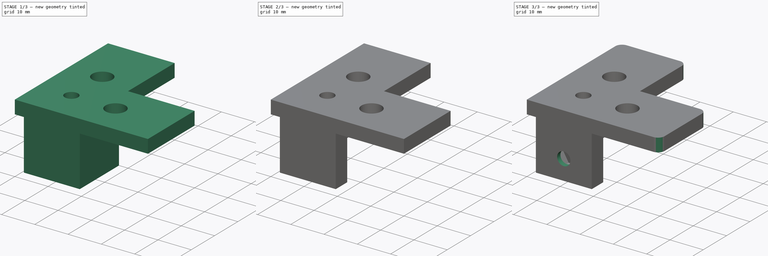
[diagram: build sequence overview — one tinted view per stage of 3, left to right]
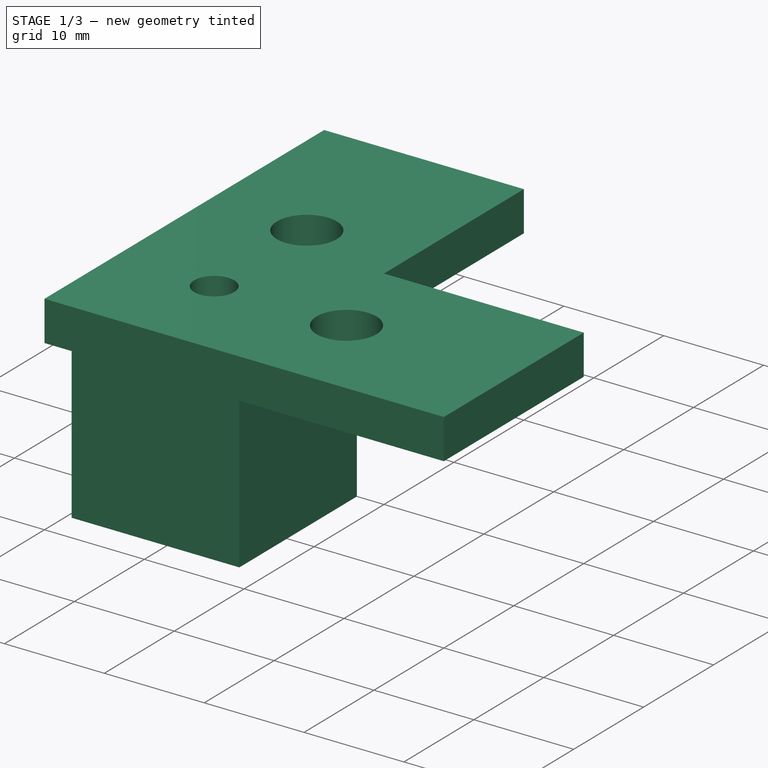
[diagram: stage 1 of 3 — iso view after this stage's code; geometry added in this stage tinted green]
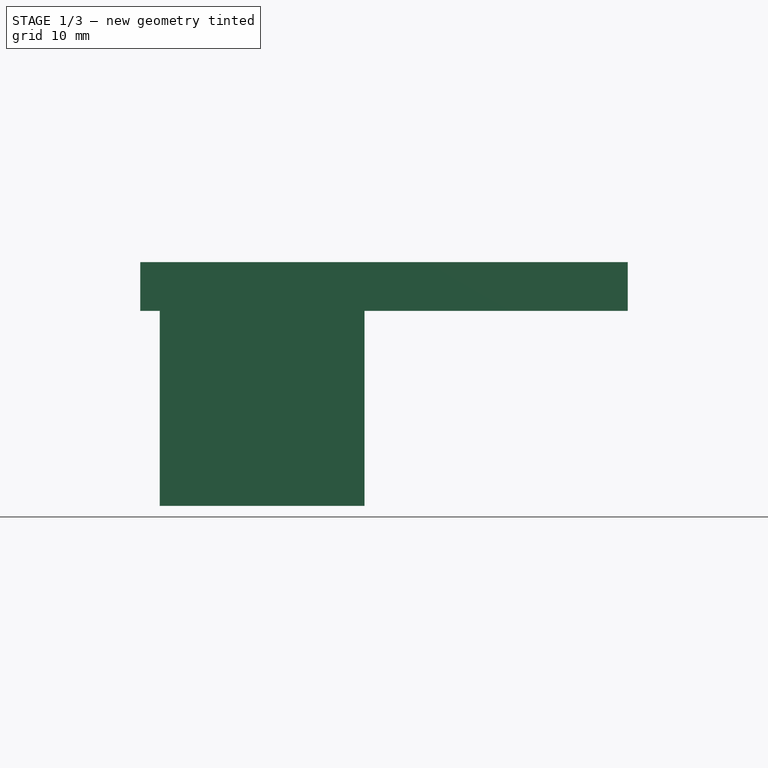
[diagram: stage 1 of 3 — front view after this stage's code; geometry added in this stage tinted green]
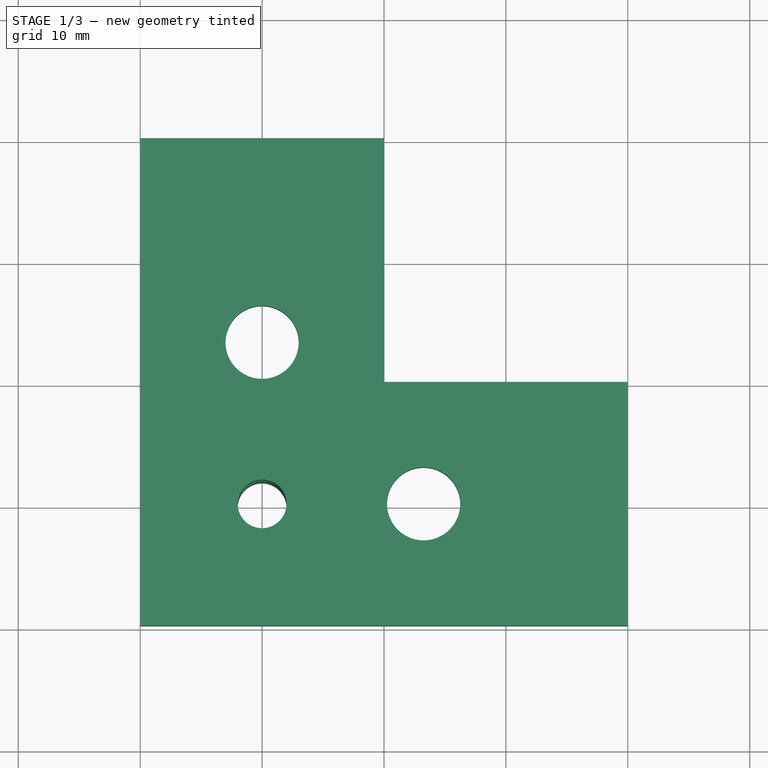
[diagram: stage 1 of 3 — top view after this stage's code; geometry added in this stage tinted green]
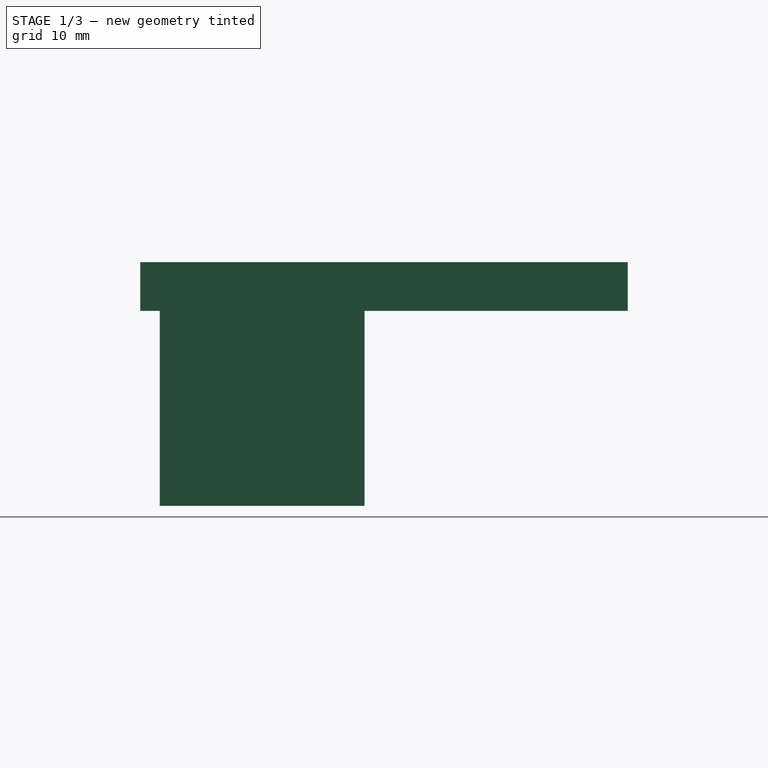
[diagram: stage 1 of 3 — right view after this stage's code; geometry added in this stage tinted green]
FCSTD DOCUMENT  (FreeCAD 0.19R)
Label: coupler
License: All rights reserved
LicenseURL: http://en.wikipedia.org/wiki/All_rights_reserved
objects: Sketcher::SketchObject×6, PartDesign::Pocket×4, PartDesign::Pad×2, PartDesign::Fillet×1, PartDesign::Body×1
note: 20 computed .brp shape members not serialized (recipe doc carries the construction recipe); baked Part::Feature solids carry a one-line shape summary decoded from their .brp

FEATURE [Sketcher::SketchObject] Sketch
  MapMode = 5
  Support = -> [XY_Plane]
  expr: Constraints[11] = .Constraints.width_a / 2
  expr: Constraints[10] = .Constraints.width_a / 2
  sketch-geometry (5):
    g0: LineSegment StartX=-8.4 StartY=-8.4 StartZ=0 EndX=8.4 EndY=-8.4 EndZ=0
    g1: LineSegment StartX=8.4 StartY=-8.4 StartZ=0 EndX=8.4 EndY=8.4 EndZ=0
    g2: LineSegment StartX=8.4 StartY=8.4 StartZ=0 EndX=-8.4 EndY=8.4 EndZ=0
    g3: LineSegment StartX=-8.4 StartY=8.4 StartZ=0 EndX=-8.4 EndY=-8.4 EndZ=0
    g4: Circle CenterX=0 CenterY=0 CenterZ=0 NormalX=0 NormalY=0 NormalZ=1 AngleXU=0 Radius=2
  constraints (14):
    c: Coincident(g0,g1)
    c: Coincident(g1,g2)
    c: Coincident(g2,g3)
    c: Coincident(g3,g0)
    c: Horizontal(g0)
    c: Horizontal(g2)
    c: Vertical(g1)
    c: Vertical(g3)
    c: Equal(g3,g0)
    c: DistanceX(g0,g0) = 16.8  'width_a'
    c: DistanceX(g0,g-1) = 8.4
    c: DistanceY(g0,g-1) = 8.4
    c: Coincident(g4,g-1)
    c: Diameter(g4) = 4
FEATURE [PartDesign::Pad] Pad
  Length = 16
  Length2 = 100
  Profile = -> Sketch
  Type = 0
FEATURE [Sketcher::SketchObject] Sketch002
  MapMode = 5
  Placement = pos=(0,0,16) rot=(0,0,1;0rad)
  sketch-geometry (9):
    g0: LineSegment StartX=-10 StartY=-10 StartZ=0 EndX=30 EndY=-10 EndZ=0
    g1: LineSegment StartX=30 StartY=-10 StartZ=0 EndX=30 EndY=10 EndZ=0
    g2: LineSegment StartX=30 StartY=10 StartZ=0 EndX=10 EndY=10 EndZ=0
    g3: LineSegment StartX=10 StartY=10 StartZ=0 EndX=10 EndY=30 EndZ=0
    g4: LineSegment StartX=10 StartY=30 StartZ=0 EndX=-10 EndY=30 EndZ=0
    g5: LineSegment StartX=-10 StartY=30 StartZ=0 EndX=-10 EndY=-10 EndZ=0
    g6: Circle CenterX=0 CenterY=0 CenterZ=0 NormalX=0 NormalY=0 NormalZ=1 AngleXU=0 Radius=2
    g7: Circle CenterX=0 CenterY=13.25 CenterZ=0 NormalX=0 NormalY=0 NormalZ=1 AngleXU=0 Radius=3
    g8: Circle CenterX=13.25 CenterY=0 CenterZ=0 NormalX=0 NormalY=0 NormalZ=1 AngleXU=0 Radius=3
  constraints (26):
    c: Horizontal(g0)
    c: Coincident(g0,g1)
    c: Vertical(g1)
    c: Coincident(g1,g2)
    c: Horizontal(g2)
    c: Coincident(g2,g3)
    c: Vertical(g3)
    c: Coincident(g3,g4)
    c: Horizontal(g4)
    c: Coincident(g4,g5)
    c: Coincident(g5,g0)
    c: Vertical(g5)
    c: DistanceX(g0,g-1) = 10
    c: DistanceY(g0,g-1) = 10
    c: DistanceY(g1,g1) = 20
    c: DistanceX(g0,g0) = 40
    c: Equal(g0,g5)
    c: Equal(g1,g4)
    c: Coincident(g6,g-1)
    c: Diameter(g6) = 4
    c: PointOnObject(g7,g-2)
    c: DistanceY(g6,g7) = 13.25
    c: PointOnObject(g8,g-1)
    c: DistanceX(g6,g8) = 13.25
    c: Equal(g7,g8)
    c: Diameter(g7) = 6
FEATURE [PartDesign::Pad] Pad001
  BaseFeature = -> Pad
  Length = 4
  Length2 = 100
  Profile = -> Sketch002
  Type = 0
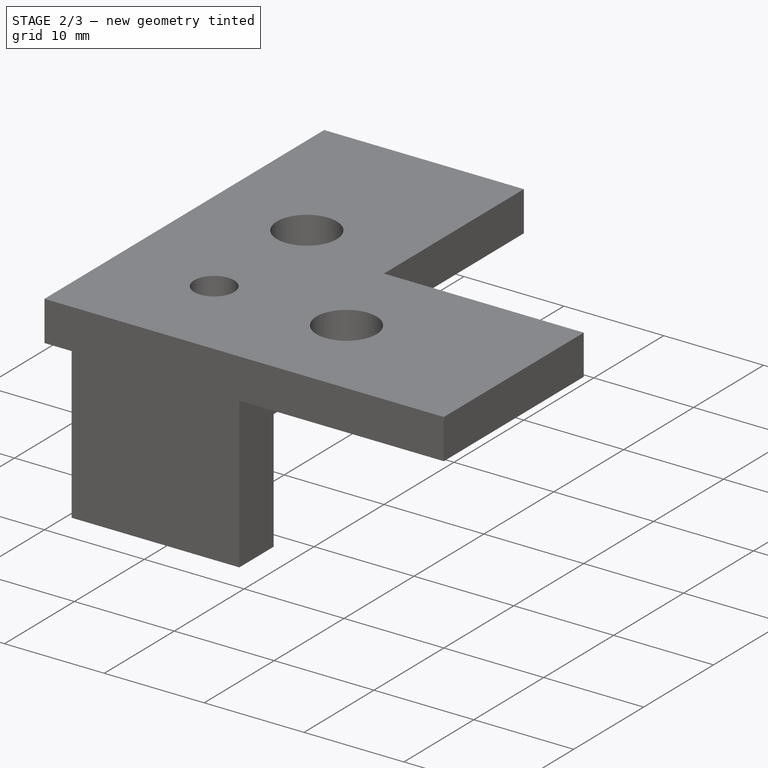
[diagram: stage 2 of 3 — iso view after this stage's code; geometry added in this stage tinted green]
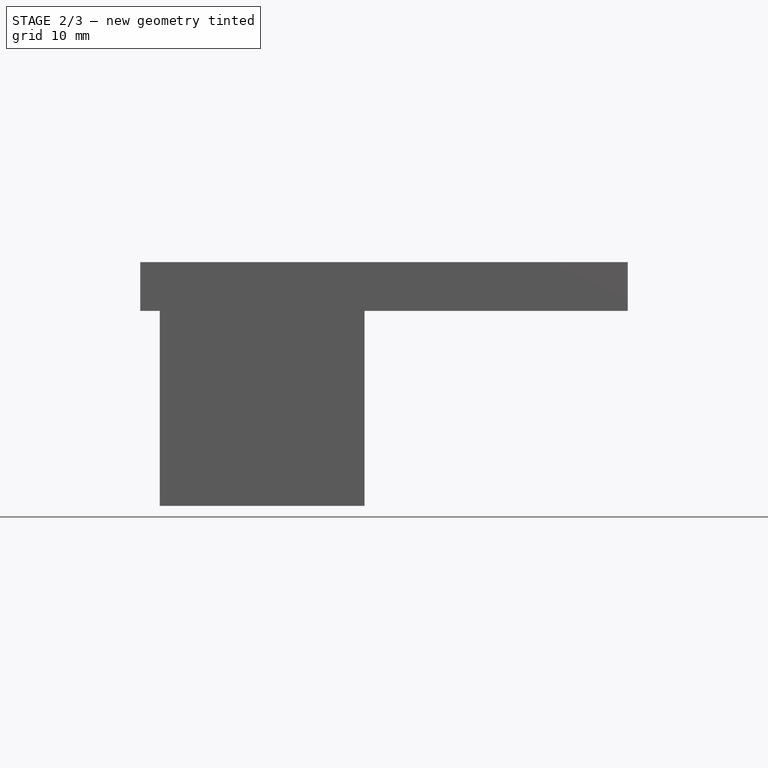
[diagram: stage 2 of 3 — front view after this stage's code; geometry added in this stage tinted green]
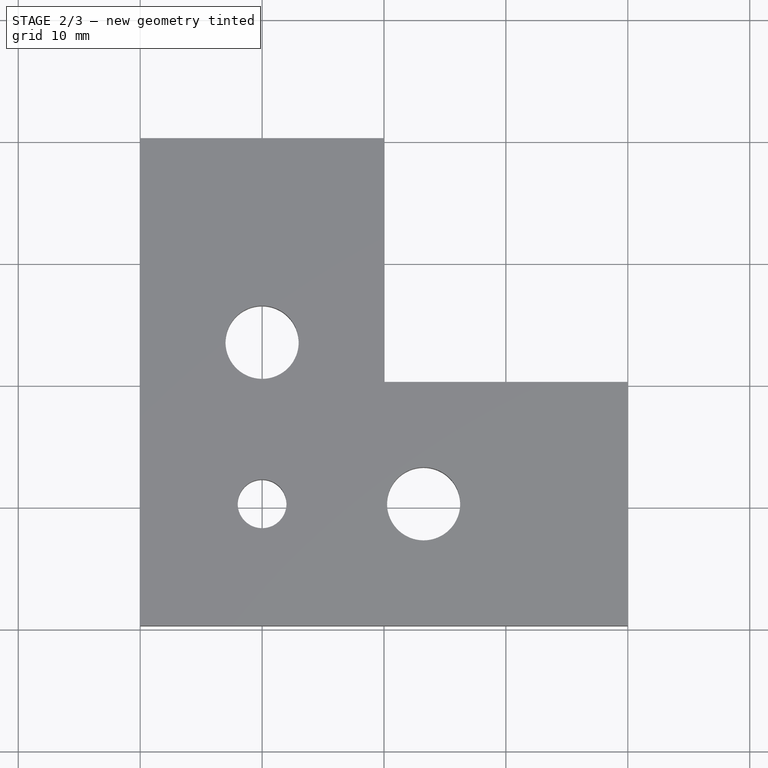
[diagram: stage 2 of 3 — top view after this stage's code; geometry added in this stage tinted green]
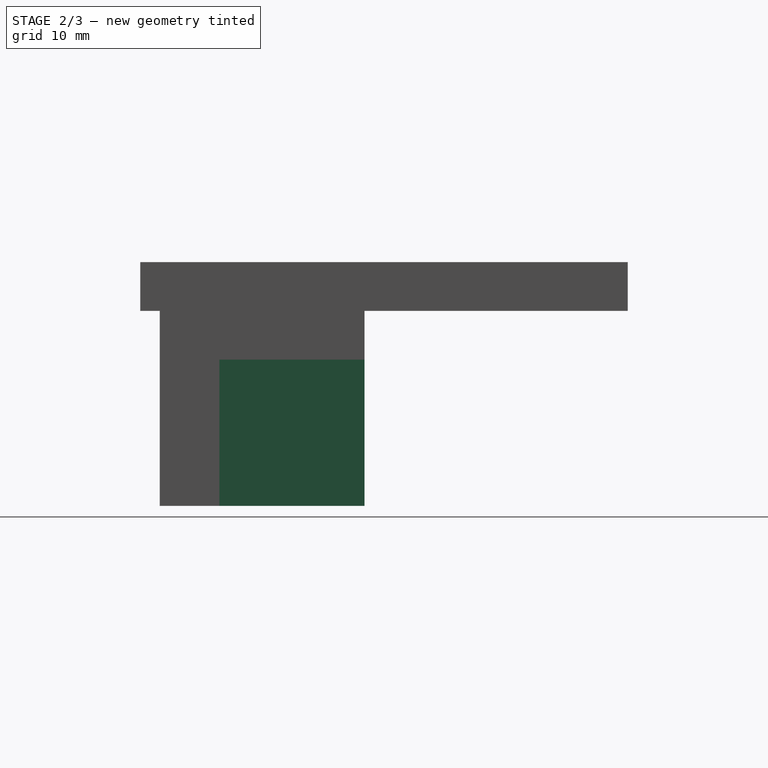
[diagram: stage 2 of 3 — right view after this stage's code; geometry added in this stage tinted green]
FEATURE [Sketcher::SketchObject] Sketch003
  MapMode = 5
  Support = -> [XY_Plane]
  expr: Constraints[3] = Sketch.Constraints.width_a / 2
  expr: Constraints[4] = Sketch.Constraints.width_a / 2 + 4mm
  expr: Constraints[9] = Sketch.Constraints.width_a / 2
  expr: Constraints[11] = Sketch.Constraints.width_a / 2 + 3.5mm
  sketch-geometry (4):
    g0: LineSegment StartX=8.4 StartY=8.4 StartZ=0 EndX=-4 EndY=8.4 EndZ=0
    g1: LineSegment StartX=8.4 StartY=-3.5 StartZ=0 EndX=8.4 EndY=8.4 EndZ=0
    g2: LineSegment StartX=-4 StartY=8.4 StartZ=0 EndX=-4 EndY=-3.5 EndZ=0
    g3: LineSegment StartX=-4 StartY=-3.5 StartZ=0 EndX=8.4 EndY=-3.5 EndZ=0
  constraints (12):
    c: Coincident(g1,g0)
    c: Horizontal(g0)
    c: Vertical(g1)
    c: DistanceY(g-1,g0) = 8.4
    c: DistanceX(g0,g0) = 12.4
    c: Coincident(g0,g2)
    c: Vertical(g2)
    c: Coincident(g3,g1)
    c: Horizontal(g3)
    c: DistanceX(g-1,g0) = 8.4
    c: Coincident(g2,g3)
    c: DistanceY(g1,g1) = 11.9
FEATURE [PartDesign::Pocket] Pocket001
  BaseFeature = -> Pad001
  Length = 12
  Length2 = 100
  Profile = -> Sketch003
  Reversed = true
  Type = 0
FEATURE [Sketcher::SketchObject] Sketch001
  MapMode = 5
  Placement = pos=(0,0,16) rot=(1,0,0;3.14159rad)
  Support = -> [Pocket001]
  sketch-geometry (1):
    g0: Circle CenterX=0 CenterY=0 CenterZ=0 NormalX=0 NormalY=0 NormalZ=1 AngleXU=0 Radius=3.5
  constraints (2):
    c: Coincident(g0,g-1)
    c: Diameter(g0) = 7
FEATURE [PartDesign::Pocket] Pocket
  BaseFeature = -> Pocket001
  Length = 0
  Length2 = 100
  Profile = -> Sketch001
  Reversed = true
  Type = 3
  UpToFace = -> Pocket001 [Face8]
FEATURE [Sketcher::SketchObject] Sketch004
  MapMode = 5
  Placement = pos=(0,-3.5,0) rot=(0,0.707107,0.707107;3.14159rad)
  Support = -> [Pocket]
  sketch-geometry (7):
    g0: LineSegment StartX=4 StartY=6 StartZ=0 EndX=2 EndY=9.4641 EndZ=0
    g1: LineSegment StartX=2 StartY=9.4641 StartZ=0 EndX=-2 EndY=9.4641 EndZ=0
    g2: LineSegment StartX=-2 StartY=9.4641 StartZ=0 EndX=-4 EndY=6 EndZ=0
    g3: LineSegment StartX=-4 StartY=6 StartZ=0 EndX=-2 EndY=2.5359 EndZ=0
    g4: LineSegment StartX=-2 StartY=2.5359 StartZ=0 EndX=2 EndY=2.5359 EndZ=0
    g5: LineSegment StartX=2 StartY=2.5359 StartZ=0 EndX=4 EndY=6 EndZ=0
    g6: Circle [constr] CenterX=0 CenterY=6 CenterZ=0 NormalX=0 NormalY=0 NormalZ=1 AngleXU=0 Radius=4
  constraints (17):
    c: Coincident(g0,g1)
    c: Coincident(g1,g2)
    c: Coincident(g2,g3)
    c: Coincident(g3,g4)
    c: Coincident(g4,g5)
    c: Coincident(g5,g0)
    c: Equal(g0, g1-g5) x5
    c: PointOnObject(g0,g6)
    c: PointOnObject(g1,g6)
    c: PointOnObject(g2,g6)
    c: PointOnObject(g3,g6)
    c: PointOnObject(g4,g6)
    c: PointOnObject(g5,g6)
    c: PointOnObject(g6,g-2)
    c: Diameter(g6) = 8
    c: Parallel(g4,g-1)
    c: DistanceY(g-1,g6) = 6
FEATURE [PartDesign::Pocket] Pocket002
  BaseFeature = -> Pocket
  Length = 3.5
  Length2 = 100
  Profile = -> Sketch004
  Type = 0
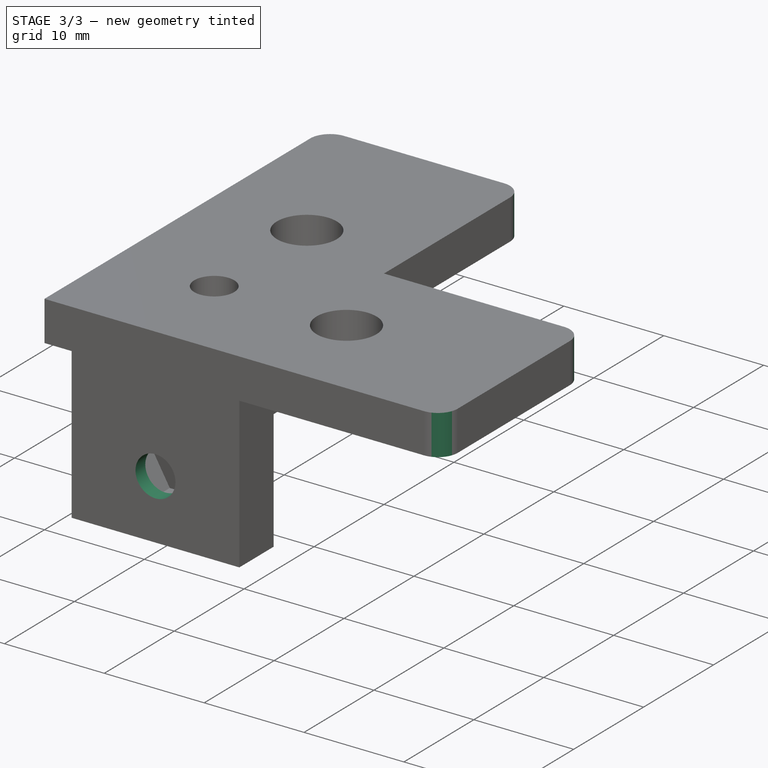
[diagram: stage 3 of 3 — iso view after this stage's code; geometry added in this stage tinted green]
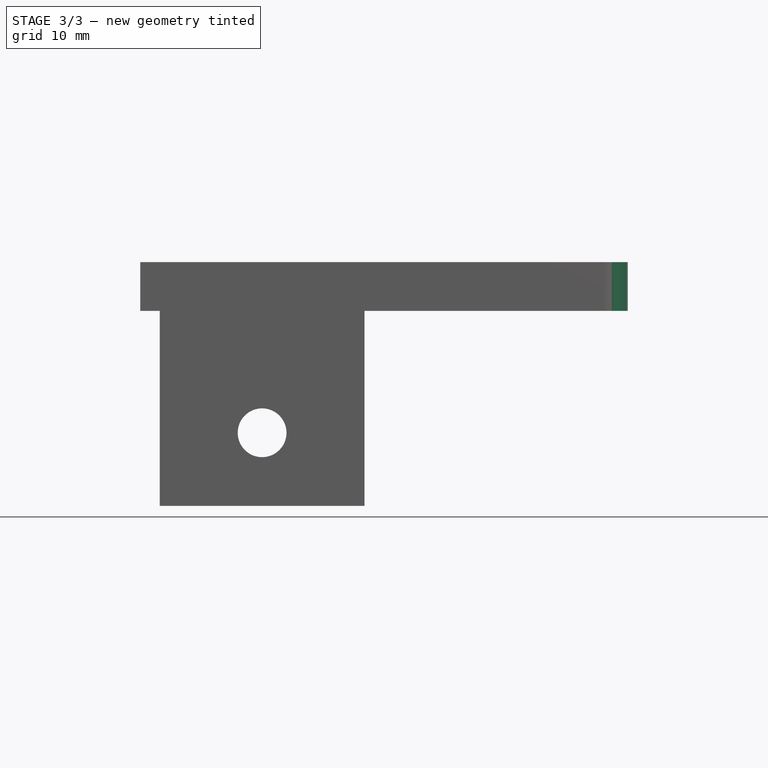
[diagram: stage 3 of 3 — front view after this stage's code; geometry added in this stage tinted green]
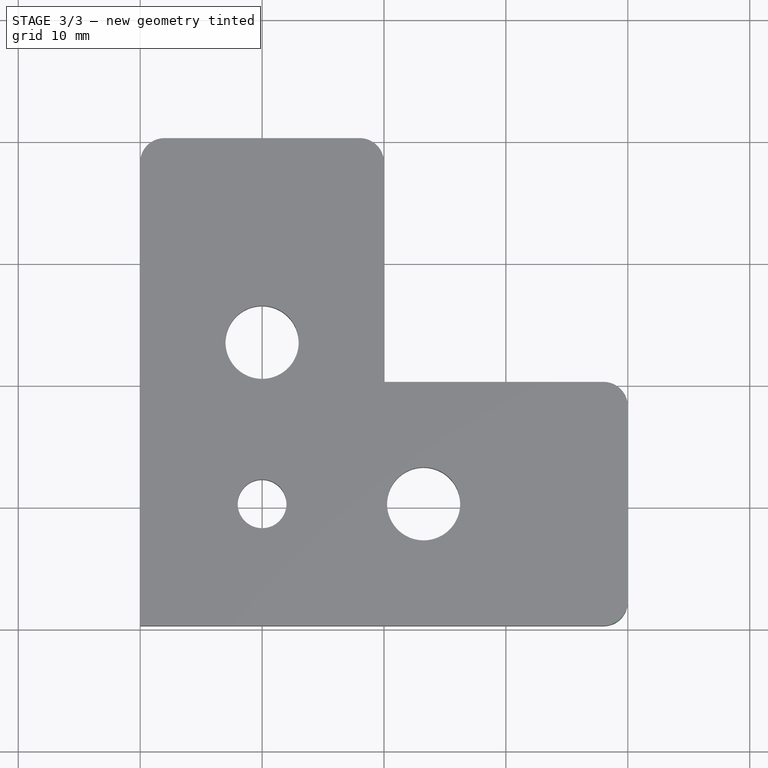
[diagram: stage 3 of 3 — top view after this stage's code; geometry added in this stage tinted green]
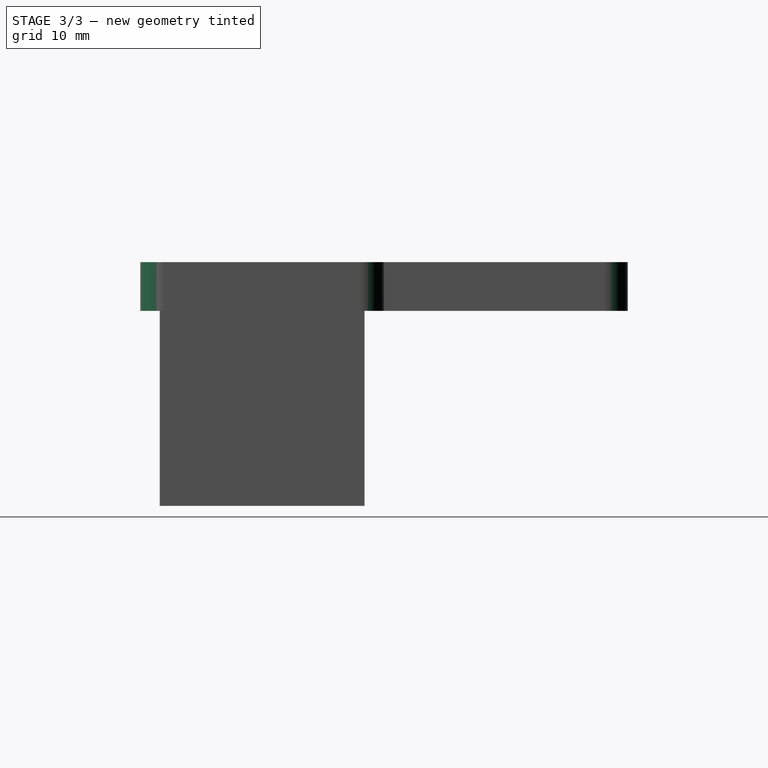
[diagram: stage 3 of 3 — right view after this stage's code; geometry added in this stage tinted green]
FEATURE [Sketcher::SketchObject] Sketch005
  MapMode = 5
  Placement = pos=(0,-8.4,0) rot=(1,0,0;1.5708rad)
  Support = -> [Pocket002]
  sketch-geometry (1):
    g0: Circle CenterX=0 CenterY=6 CenterZ=0 NormalX=0 NormalY=0 NormalZ=1 AngleXU=0 Radius=2
  constraints (3):
    c: PointOnObject(g0,g-2)
    c: DistanceY(g-1,g0) = 6
    c: Diameter(g0) = 4
FEATURE [PartDesign::Pocket] Pocket003
  BaseFeature = -> Pocket002
  Length = 5
  Length2 = 100
  Profile = -> Sketch005
  Type = 1
FEATURE [PartDesign::Fillet] Fillet
  Base = -> Pocket003 [Edge44,Edge48,Edge46,Edge42]
  BaseFeature = -> Pocket003
  Radius = 2
FEATURE [PartDesign::Body] Body
  Group = -> [Sketch,Pad,Sketch002,Pad001,Sketch003,Pocket001,Pocket,Sketch004,Pocket002,Sketch005,Pocket003,Fillet]
  Origin = -> Origin
  Tip = -> Fillet
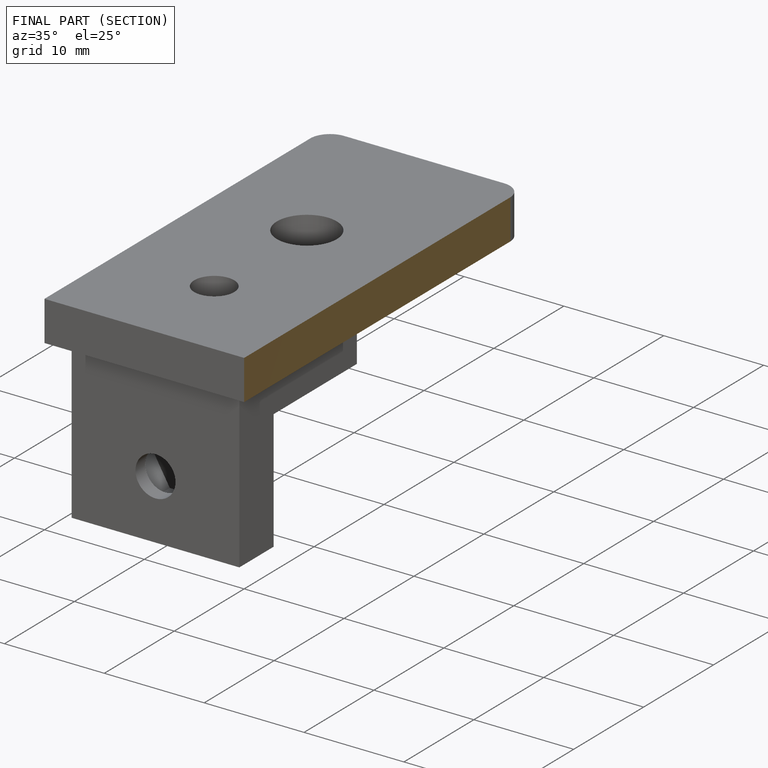
[diagram: finished part — half-section view (interior)]
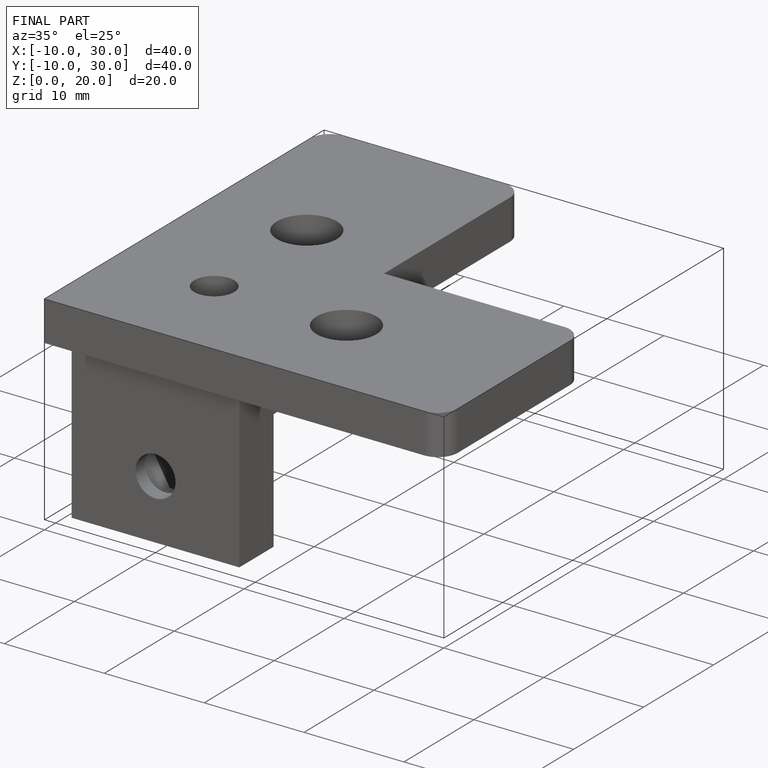
[diagram: finished part — iso view with bounding-box wireframe]
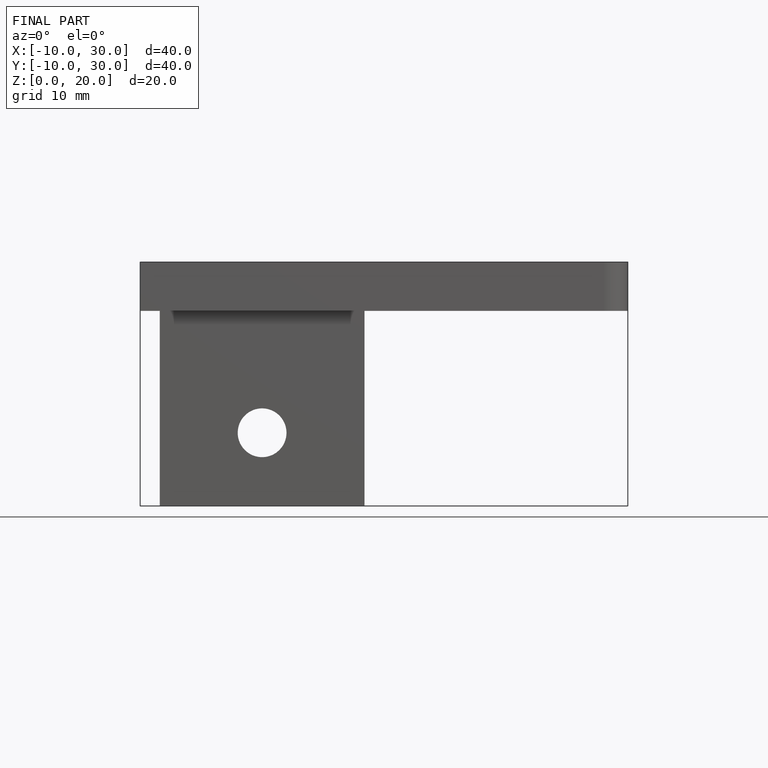
[diagram: finished part — front view with bounding-box wireframe]
